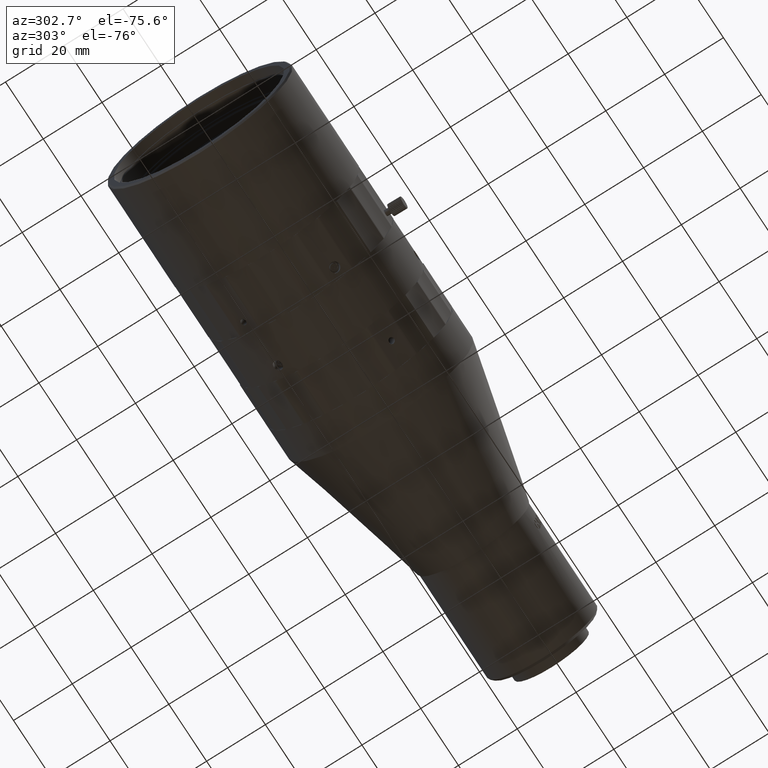
[diagram: clean part render]
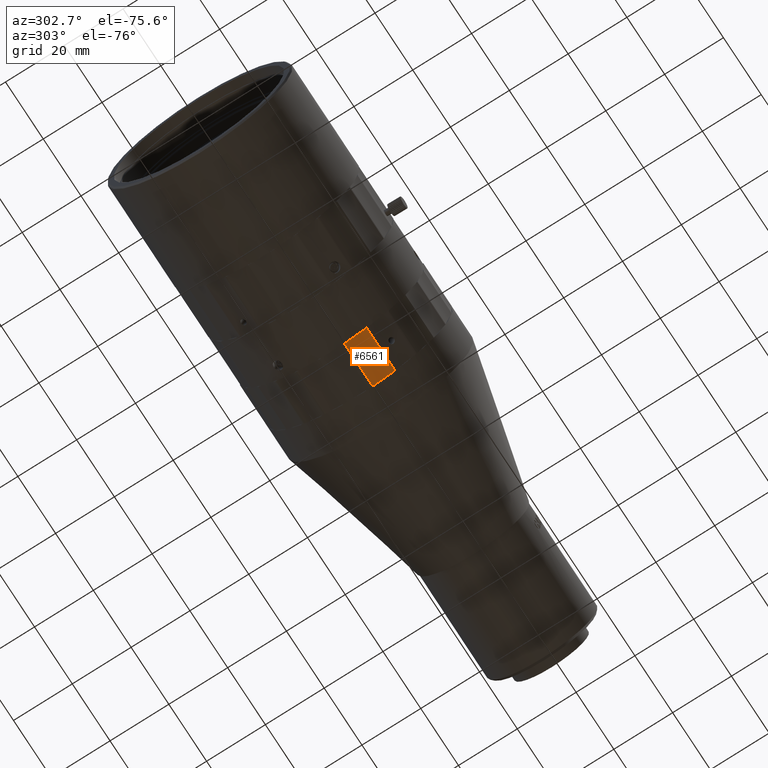
[diagram: same view with one face highlighted and labeled with its STEP entity id]
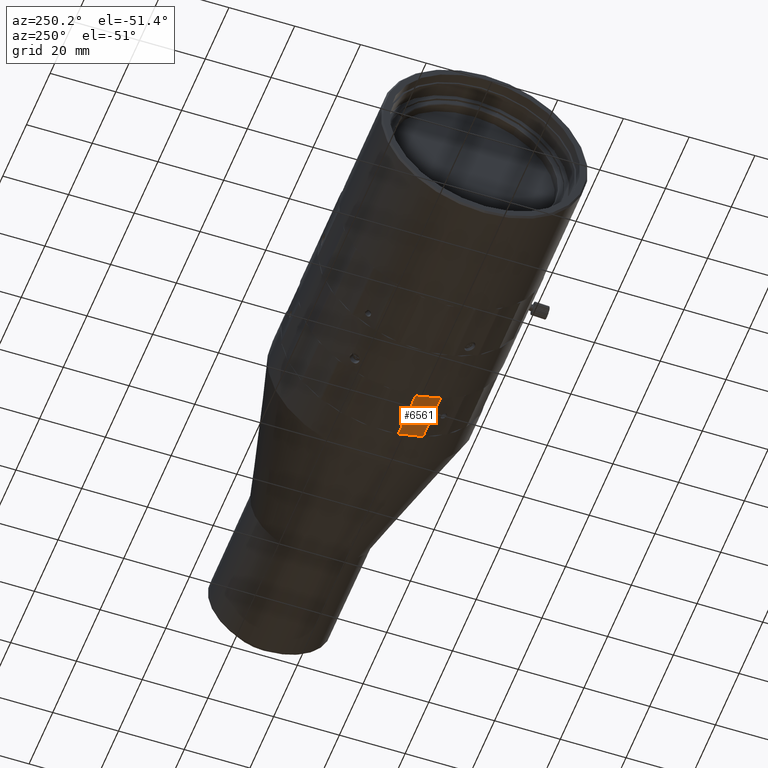
[diagram: same view with one face highlighted and labeled with its STEP entity id]
A machine part, auxiliary view. The second image highlights one B-rep face of the part: STEP entity #6561.
A second angle (auxiliary view) of the same face is appended — the face is thin or edge-on in the first view.
In plain terms, the highlighted cylindrical surface (partial cylindrical patch) has radius 50 mm, axis along (1, 0, 0).
Its self-contained STEP definition (entity closure, byte-faithful):
#1466 = CARTESIAN_POINT ( 'NONE',  ( -41.80637415755971631, -6.967813900755199796, 150.6694708501518392 ) ) ;
#1527 = LINE ( 'NONE', #4421, #46987 ) ;
#1666 = DIRECTION ( 'NONE',  ( 1.000000000000000000, 0.000000000000000000, 0.000000000000000000 ) ) ;
#4421 = CARTESIAN_POINT ( 'NONE',  ( -41.80637415755971631, 0.6167397195621250328, 148.6371958326372464 ) ) ;
#5470 = ORIENTED_EDGE ( 'NONE', *, *, #11448, .F. ) ;
#6323 = EDGE_CURVE ( 'NONE', #11790, #39019, #14853, .T. ) ;
#6561 = ADVANCED_FACE ( 'NONE', ( #37600 ), #29845, .F. ) ;
#8164 = DIRECTION ( 'NONE',  ( -1.000000000000000000, 0.000000000000000000, 0.000000000000000000 ) ) ;
#11099 = EDGE_LOOP ( 'NONE', ( #44598, #37878, #30071, #5470 ) ) ;
#11448 = EDGE_CURVE ( 'NONE', #46118, #11790, #34527, .T. ) ;
#11790 = VERTEX_POINT ( 'NONE', #21331 ) ;
#12205 = DIRECTION ( 'NONE',  ( 0.000000000000000000, 0.000000000000000000, -1.000000000000000000 ) ) ;
#14853 = CIRCLE ( 'NONE', #25964, 50.00000000000000000 ) ;
#15840 = CARTESIAN_POINT ( 'NONE',  ( -41.80637415755971631, -16.07653355725574684, 101.5061590595565946 ) ) ;
#16787 = DIRECTION ( 'NONE',  ( -1.000000000000000000, 0.000000000000000000, 0.000000000000000000 ) ) ;
#17831 = DIRECTION ( 'NONE',  ( 0.000000000000000000, 0.000000000000000000, -1.000000000000000000 ) ) ;
#21331 = CARTESIAN_POINT ( 'NONE',  ( -26.80637415756004671, -6.967813900755199796, 150.6694708501518392 ) ) ;
#24670 = EDGE_CURVE ( 'NONE', #46118, #31503, #38558, .T. ) ;
#25853 = CARTESIAN_POINT ( 'NONE',  ( -41.80637415755971631, -16.07653355725574684, 101.5061590595565946 ) ) ;
#25964 = AXIS2_PLACEMENT_3D ( 'NONE', #29088, #8164, #12205 ) ;
#26289 = CARTESIAN_POINT ( 'NONE',  ( -41.80637415755971631, -6.967813900755218448, 150.6694708501518392 ) ) ;
#29088 = CARTESIAN_POINT ( 'NONE',  ( -26.80637415756004671, -16.07653355725574684, 101.5061590595565946 ) ) ;
#29845 = CYLINDRICAL_SURFACE ( 'NONE', #50722, 50.00000000000000000 ) ;
#30071 = ORIENTED_EDGE ( 'NONE', *, *, #6323, .F. ) ;
#31503 = VERTEX_POINT ( 'NONE', #50706 ) ;
#32362 = DIRECTION ( 'NONE',  ( -1.000000000000000000, 0.000000000000000000, 0.000000000000000000 ) ) ;
#34020 = EDGE_CURVE ( 'NONE', #39019, #31503, #1527, .T. ) ;
#34527 = LINE ( 'NONE', #26289, #38124 ) ;
#37600 = FACE_OUTER_BOUND ( 'NONE', #11099, .T. ) ;
#37878 = ORIENTED_EDGE ( 'NONE', *, *, #34020, .F. ) ;
#38124 = VECTOR ( 'NONE', #1666, 1000.000000000000000 ) ;
#38400 = DIRECTION ( 'NONE',  ( 1.000000000000000000, 0.000000000000000000, 0.000000000000000000 ) ) ;
#38558 = CIRCLE ( 'NONE', #51394, 50.00000000000000000 ) ;
#39019 = VERTEX_POINT ( 'NONE', #49770 ) ;
#44598 = ORIENTED_EDGE ( 'NONE', *, *, #24670, .T. ) ;
#46118 = VERTEX_POINT ( 'NONE', #1466 ) ;
#46987 = VECTOR ( 'NONE', #16787, 1000.000000000000000 ) ;
#48962 = DIRECTION ( 'NONE',  ( 0.000000000000000000, 0.000000000000000000, -1.000000000000000000 ) ) ;
#49770 = CARTESIAN_POINT ( 'NONE',  ( -26.80637415756004671, 0.6167397195621007189, 148.6371958326372464 ) ) ;
#50706 = CARTESIAN_POINT ( 'NONE',  ( -41.80637415755971631, 0.6167397195621007189, 148.6371958326372464 ) ) ;
#50722 = AXIS2_PLACEMENT_3D ( 'NONE', #25853, #38400, #17831 ) ;
#51394 = AXIS2_PLACEMENT_3D ( 'NONE', #15840, #32362, #48962 ) ;